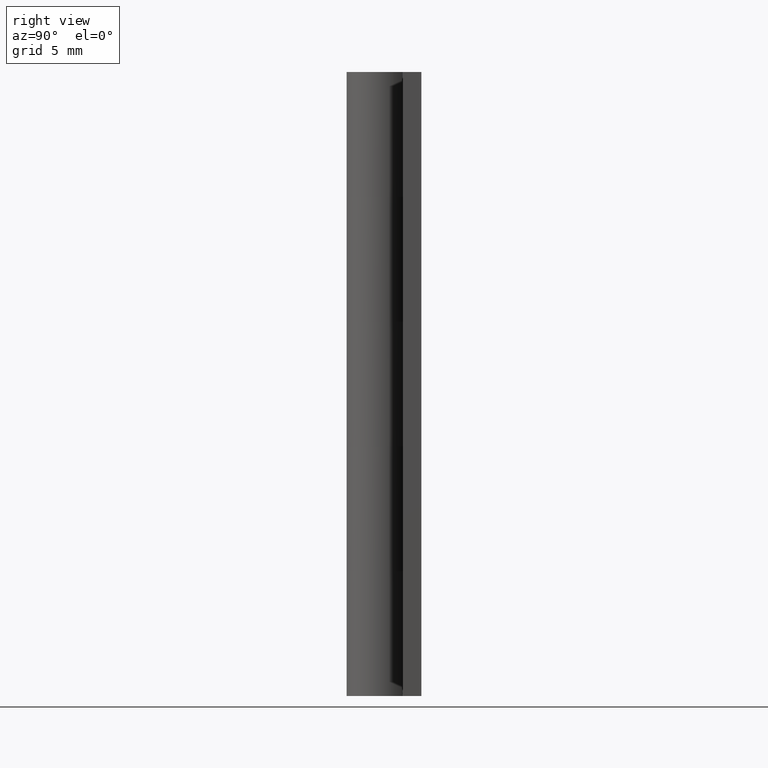
[diagram: clean part render]
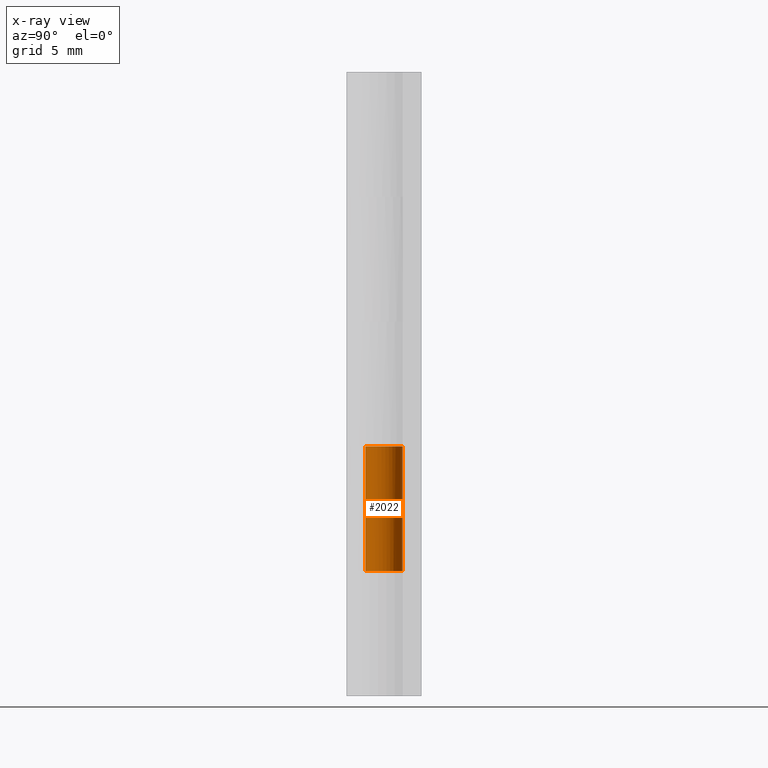
[diagram: x-ray — body ghosted, one internal face saturated and labeled with its STEP entity id]
A machine part, right view, then the same camera in x-ray: the body is ghosted and one INTERNAL B-rep face — a face not visible from any outside direction — is saturated and labeled: STEP entity #2022.
In plain terms, the highlighted face is a freeform B-spline surface patch.
Its self-contained STEP definition (entity closure, byte-faithful):
#1528=CARTESIAN_POINT('',(-2.940072E-015,1.500000000000000,20.0));
#1529=VERTEX_POINT('',#1528);
#1535=CARTESIAN_POINT('',(-1.313154598666890,0.725000000000000,20.0));
#1536=VERTEX_POINT('',#1535);
#1537=CARTESIAN_POINT('',(0.0,1.500000000000000,20.0));
#1538=CARTESIAN_POINT('',(1.145299021212402,1.500000000000000,20.000000000000004));
#1539=CARTESIAN_POINT('',(1.447014444021650,0.395157182387865,20.0));
#1540=CARTESIAN_POINT('',(1.748729866830898,-0.709685635224273,20.000000000000004));
#1541=CARTESIAN_POINT('',(0.762397534098847,-1.291801068276380,20.0));
#1542=CARTESIAN_POINT('',(-0.223934798633204,-1.873916501328487,20.000000000000004));
#1543=CARTESIAN_POINT('',(-1.045325295443045,-1.075776476182163,20.0));
#1544=CARTESIAN_POINT('',(-1.866715792252885,-0.277636451035838,20.000000000000004));
#1545=CARTESIAN_POINT('',(-1.313154598666890,0.724999999999999,20.0));
#1553=(BOUNDED_CURVE()B_SPLINE_CURVE(2,(#1537,#1538,#1539,#1540,#1541,#1542,#1543,#1544,#1545),.UNSPECIFIED.,.F.,.U.)B_SPLINE_CURVE_WITH_KNOTS((3,2,2,2,3),(0.0,0.250000000000000,0.500000000000000,0.750000000000000,1.0),.UNSPECIFIED.)CURVE()GEOMETRIC_REPRESENTATION_ITEM()RATIONAL_B_SPLINE_CURVE((1.0,0.794807562115481,1.0,0.794807562115481,1.0,0.794807562115481,1.0,0.794807562115481,1.0))REPRESENTATION_ITEM(''));
#1554=EDGE_CURVE('',#1529,#1536,#1553,.T.);
#1634=CARTESIAN_POINT('',(-2.940072E-015,1.500000000000000,10.0));
#1635=VERTEX_POINT('',#1634);
#1670=CARTESIAN_POINT('',(-1.313154598666890,0.725000000000000,10.0));
#1671=VERTEX_POINT('',#1670);
#1677=CARTESIAN_POINT('',(-1.313154598666890,0.725000000000000,10.0));
#1678=CARTESIAN_POINT('',(-1.866715792252885,-0.277636451035838,10.0));
#1679=CARTESIAN_POINT('',(-1.045325295443045,-1.075776476182162,10.0));
#1680=CARTESIAN_POINT('',(-0.223934798633205,-1.873916501328488,10.0));
#1681=CARTESIAN_POINT('',(0.762397534098847,-1.291801068276380,10.0));
#1682=CARTESIAN_POINT('',(1.748729866830898,-0.709685635224274,10.0));
#1683=CARTESIAN_POINT('',(1.447014444021650,0.395157182387864,10.0));
#1684=CARTESIAN_POINT('',(1.145299021212402,1.500000000000001,10.0));
#1685=CARTESIAN_POINT('',(0.0,1.500000000000000,10.0));
#1693=(BOUNDED_CURVE()B_SPLINE_CURVE(2,(#1677,#1678,#1679,#1680,#1681,#1682,#1683,#1684,#1685),.UNSPECIFIED.,.F.,.U.)B_SPLINE_CURVE_WITH_KNOTS((3,2,2,2,3),(0.0,0.250000000000000,0.500000000000000,0.750000000000000,1.0),.UNSPECIFIED.)CURVE()GEOMETRIC_REPRESENTATION_ITEM()RATIONAL_B_SPLINE_CURVE((1.0,0.794807562115481,1.0,0.794807562115481,1.0,0.794807562115481,1.0,0.794807562115481,1.0))REPRESENTATION_ITEM(''));
#1694=EDGE_CURVE('',#1671,#1635,#1693,.T.);
#1919=CARTESIAN_POINT('',(-2.940072E-015,1.500000000000000,10.0));
#1920=CARTESIAN_POINT('',(-2.940072E-015,1.500000000000000,20.0));
#1921=QUASI_UNIFORM_CURVE('',1,(#1919,#1920),.UNSPECIFIED.,.F.,.U.);
#1922=EDGE_CURVE('',#1635,#1529,#1921,.T.);
#1984=CARTESIAN_POINT('',(-1.313154598666890,0.725000000000000,10.0));
#1985=CARTESIAN_POINT('',(-1.313154598666890,0.725000000000000,20.0));
#1986=QUASI_UNIFORM_CURVE('',1,(#1984,#1985),.UNSPECIFIED.,.F.,.U.);
#1987=EDGE_CURVE('',#1671,#1536,#1986,.T.);
#1994=CARTESIAN_POINT('',(-0.013089803247563,1.499942884596257,9.749999999999998));
#1995=CARTESIAN_POINT('',(-0.013089803247563,1.499942884596257,20.256250000000001));
#1996=CARTESIAN_POINT('',(1.795740308696871,1.515728305839141,9.749999999999998));
#1997=CARTESIAN_POINT('',(1.795740308696871,1.515728305839141,20.256250000000005));
#1998=CARTESIAN_POINT('',(1.476447697697895,-0.264768192883106,9.749999999999998));
#1999=CARTESIAN_POINT('',(1.476447697697895,-0.264768192883106,20.256250000000001));
#2000=CARTESIAN_POINT('',(1.157155086698920,-2.045264691605354,9.749999999999998));
#2001=CARTESIAN_POINT('',(1.157155086698920,-2.045264691605354,20.256250000000005));
#2002=CARTESIAN_POINT('',(-0.533476142722311,-1.401928388023484,9.749999999999998));
#2003=CARTESIAN_POINT('',(-0.533476142722311,-1.401928388023484,20.256250000000001));
#2004=CARTESIAN_POINT('',(-2.224107372143542,-0.758592084441614,9.749999999999998));
#2005=CARTESIAN_POINT('',(-2.224107372143542,-0.758592084441614,20.256250000000005));
#2006=CARTESIAN_POINT('',(-1.278960246531141,0.783747847073919,9.749999999999998));
#2007=CARTESIAN_POINT('',(-1.278960246531141,0.783747847073919,20.256250000000001));
#2015=(BOUNDED_SURFACE()B_SPLINE_SURFACE(1,2,((#1994,#1996,#1998,#2000,#2002,#2004,#2006),(#1995,#1997,#1999,#2001,#2003,#2005,#2007)),.UNSPECIFIED.,.F.,.F.,.U.)B_SPLINE_SURFACE_WITH_KNOTS((2,2),(3,2,2,3),(0.0,10.506250000000000),(0.0,2.819123256080202,5.638246512160404,8.457369768240607),.UNSPECIFIED.)GEOMETRIC_REPRESENTATION_ITEM()RATIONAL_B_SPLINE_SURFACE(((1.0,0.638320090924328,1.0,0.638320090924328,1.0,0.638320090924328,1.0),(1.0,0.638320090924328,1.0,0.638320090924328,1.0,0.638320090924328,1.0)))REPRESENTATION_ITEM('')SURFACE());
#2016=ORIENTED_EDGE('',*,*,#1554,.F.);
#2017=ORIENTED_EDGE('',*,*,#1922,.F.);
#2018=ORIENTED_EDGE('',*,*,#1694,.F.);
#2019=ORIENTED_EDGE('',*,*,#1987,.T.);
#2020=EDGE_LOOP('',(#2016,#2017,#2018,#2019));
#2021=FACE_OUTER_BOUND('',#2020,.T.);
#2022=ADVANCED_FACE('',(#2021),#2015,.F.);